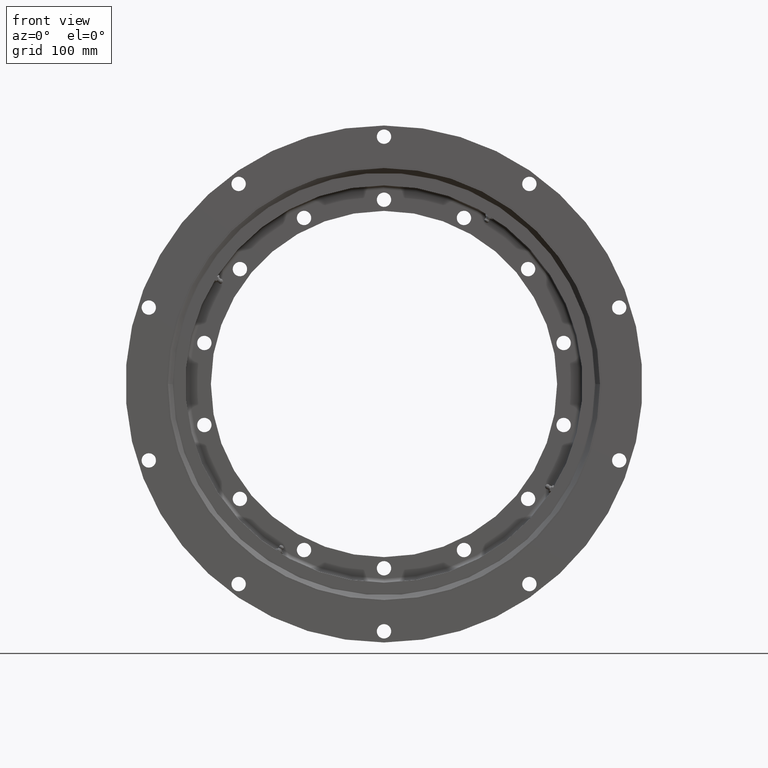
[diagram: clean part render]
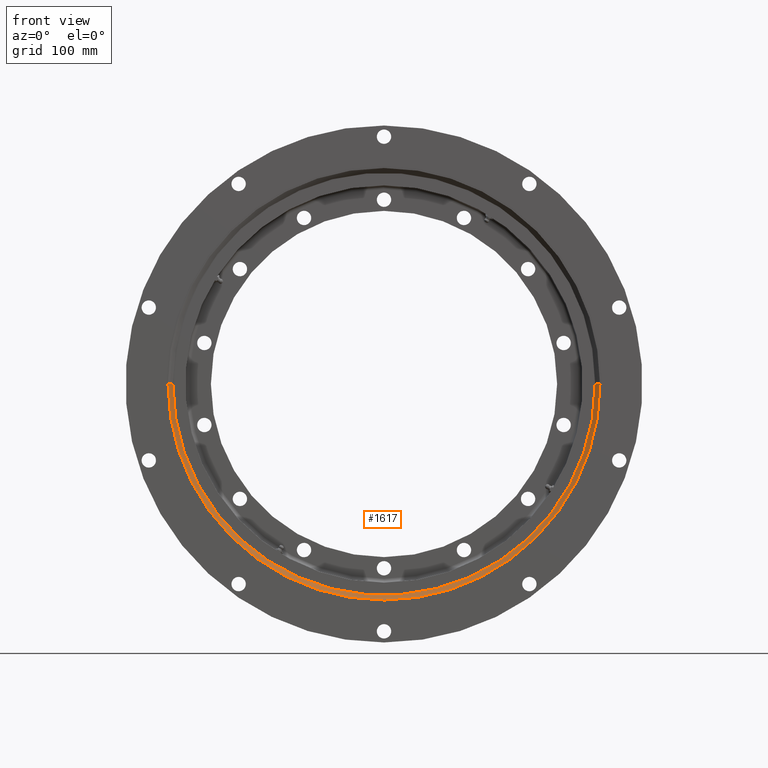
[diagram: same view with one face highlighted and labeled with its STEP entity id]
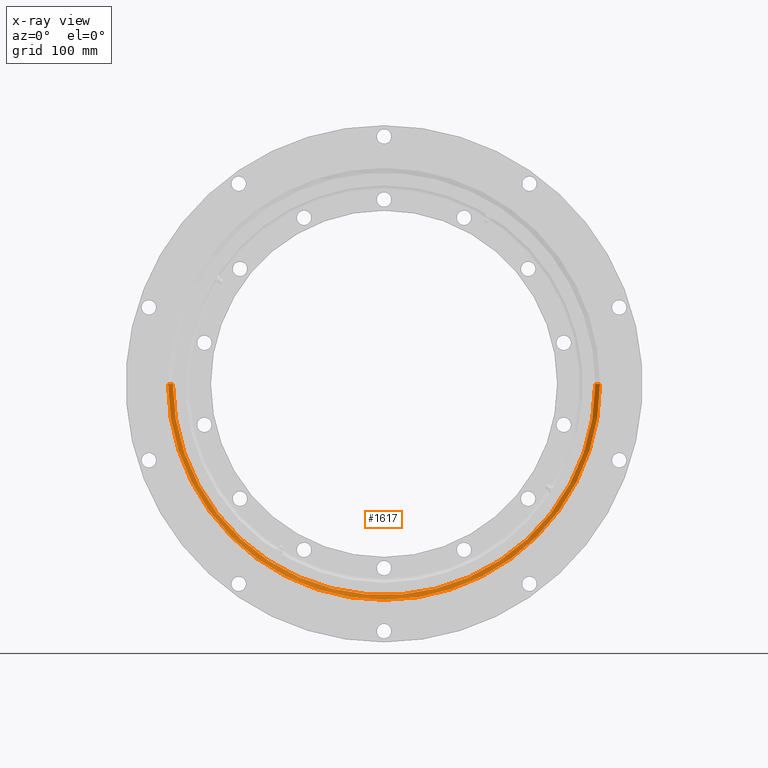
[diagram: x-ray of the same camera — body ghosted, the highlighted face saturated]
A machine part, front view. The second image highlights one B-rep face of the part: STEP entity #1617.
The next image is the same camera in x-ray: the body ghosted, the highlighted face saturated — about 0% of this face is hidden behind the body in this view.
In plain terms, the highlighted conical surface has half-angle 49.914 deg.
Its self-contained STEP definition (entity closure, byte-faithful):
#12 = CARTESIAN_POINT ( 'NONE',  ( -9.756709780624421200E-015, -23.04999999999999400, 0.0000000000000000000 ) ) ;
#19 = DIRECTION ( 'NONE',  ( 0.7650765054985578800, -0.6439393921279511500, 0.0000000000000000000 ) ) ;
#407 = CARTESIAN_POINT ( 'NONE',  ( -270.7499999999999400, -23.04999999999994400, 3.315731208691457900E-014 ) ) ;
#528 = CARTESIAN_POINT ( 'NONE',  ( -8.854313453393021200E-015, -18.00000000000005000, 0.0000000000000000000 ) ) ;
#842 = VERTEX_POINT ( 'NONE', #9331 ) ;
#1617 = ADVANCED_FACE ( 'NONE', ( #4548 ), #8786, .F. ) ;
#2119 = AXIS2_PLACEMENT_3D ( 'NONE', #3347, #4643, #9110 ) ;
#2160 = EDGE_CURVE ( 'NONE', #4246, #5975, #4388, .T. ) ;
#3008 = EDGE_LOOP ( 'NONE', ( #6624, #9230, #4631, #3712 ) ) ;
#3086 = EDGE_CURVE ( 'NONE', #842, #4908, #6060, .T. ) ;
#3263 = DIRECTION ( 'NONE',  ( -0.7650765054985579900, -0.6439393921279509300, 9.369484935616514700E-017 ) ) ;
#3275 = EDGE_CURVE ( 'NONE', #4908, #5975, #3829, .T. ) ;
#3347 = CARTESIAN_POINT ( 'NONE',  ( -9.756709780624421200E-015, -23.04999999999999400, 0.0000000000000000000 ) ) ;
#3712 = ORIENTED_EDGE ( 'NONE', *, *, #9304, .F. ) ;
#3829 = LINE ( 'NONE', #7781, #5379 ) ;
#3921 = CARTESIAN_POINT ( 'NONE',  ( -264.7500000000000000, -18.00000000000000400, 3.278991804717038000E-014 ) ) ;
#4000 = CARTESIAN_POINT ( 'NONE',  ( 270.7499999999999400, -23.05000000000004300, 0.0000000000000000000 ) ) ;
#4185 = CARTESIAN_POINT ( 'NONE',  ( 270.7499999999999400, -23.05000000000004300, 0.0000000000000000000 ) ) ;
#4246 = VERTEX_POINT ( 'NONE', #4185 ) ;
#4388 = CIRCLE ( 'NONE', #9543, 270.7499999999999400 ) ;
#4548 = FACE_OUTER_BOUND ( 'NONE', #3008, .T. ) ;
#4576 = DIRECTION ( 'NONE',  ( 1.786923420260216300E-016, 1.000000000000000000, -0.0000000000000000000 ) ) ;
#4631 = ORIENTED_EDGE ( 'NONE', *, *, #2160, .F. ) ;
#4643 = DIRECTION ( 'NONE',  ( -1.786923420260216300E-016, -1.000000000000000000, 0.0000000000000000000 ) ) ;
#4908 = VERTEX_POINT ( 'NONE', #3921 ) ;
#5099 = DIRECTION ( 'NONE',  ( 1.786923420260216300E-016, 1.000000000000000000, -0.0000000000000000000 ) ) ;
#5379 = VECTOR ( 'NONE', #3263, 999.9999999999998900 ) ;
#5975 = VERTEX_POINT ( 'NONE', #407 ) ;
#6060 = CIRCLE ( 'NONE', #8285, 264.7500000000000000 ) ;
#6624 = ORIENTED_EDGE ( 'NONE', *, *, #3086, .T. ) ;
#6870 = VECTOR ( 'NONE', #19, 1000.000000000000100 ) ;
#7781 = CARTESIAN_POINT ( 'NONE',  ( -270.7499999999999400, -23.04999999999994400, 3.315731208691457900E-014 ) ) ;
#8285 = AXIS2_PLACEMENT_3D ( 'NONE', #528, #5099, #9592 ) ;
#8786 = CONICAL_SURFACE ( 'NONE', #2119, 270.7499999999999400, 0.8711601305813113600 ) ;
#8877 = LINE ( 'NONE', #4000, #6870 ) ;
#9082 = DIRECTION ( 'NONE',  ( -1.000000000000000000, 1.793989190299191500E-016, 0.0000000000000000000 ) ) ;
#9110 = DIRECTION ( 'NONE',  ( 1.000000000000000000, -1.793989190299191500E-016, 0.0000000000000000000 ) ) ;
#9230 = ORIENTED_EDGE ( 'NONE', *, *, #3275, .T. ) ;
#9304 = EDGE_CURVE ( 'NONE', #842, #4246, #8877, .T. ) ;
#9331 = CARTESIAN_POINT ( 'NONE',  ( 264.7500000000000000, -18.00000000000009900, 0.0000000000000000000 ) ) ;
#9543 = AXIS2_PLACEMENT_3D ( 'NONE', #12, #4576, #9082 ) ;
#9592 = DIRECTION ( 'NONE',  ( -1.000000000000000000, 1.834646169116169800E-016, 0.0000000000000000000 ) ) ;